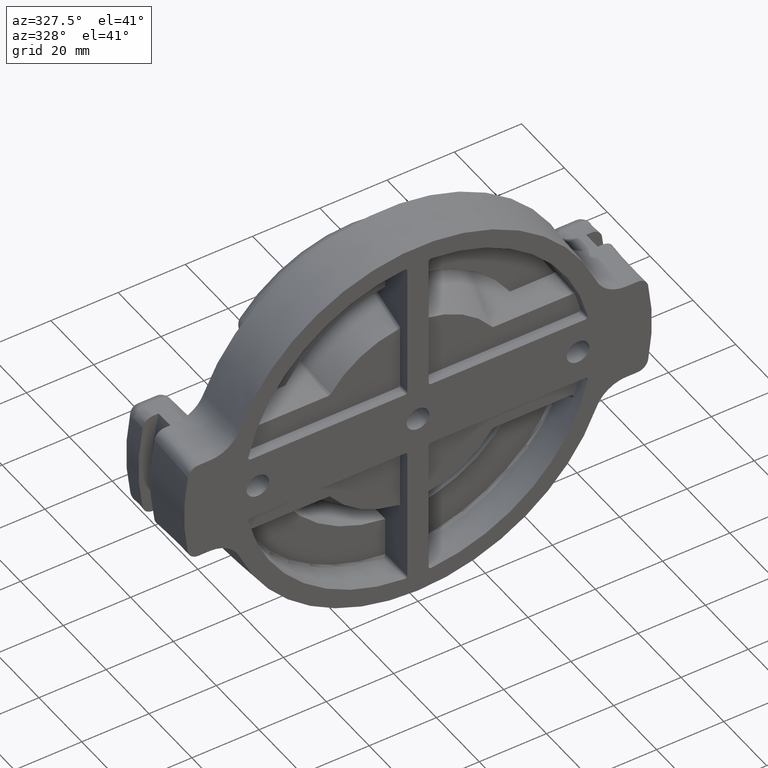
[diagram: clean part render]
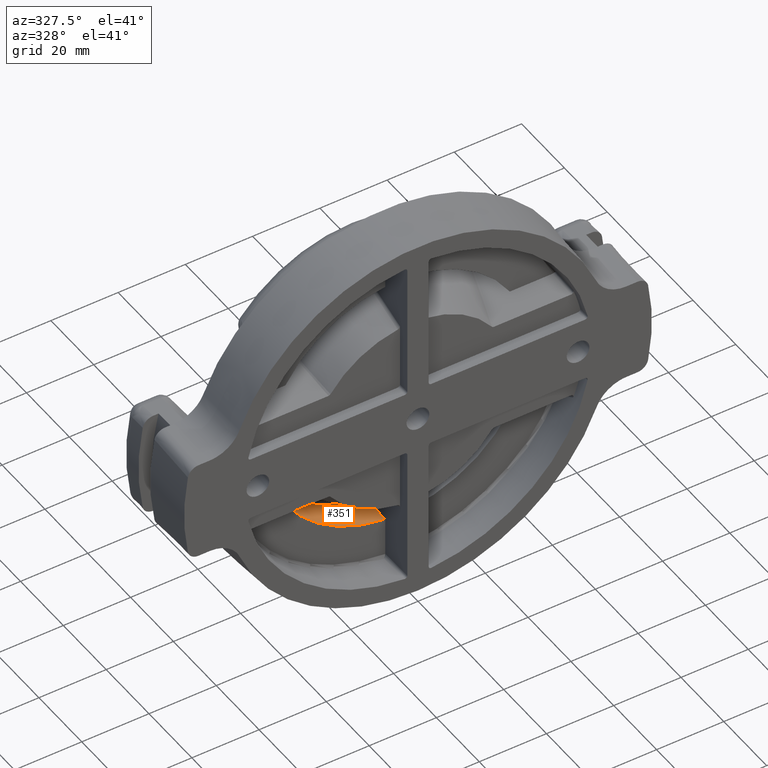
[diagram: same view with one face highlighted and labeled with its STEP entity id]
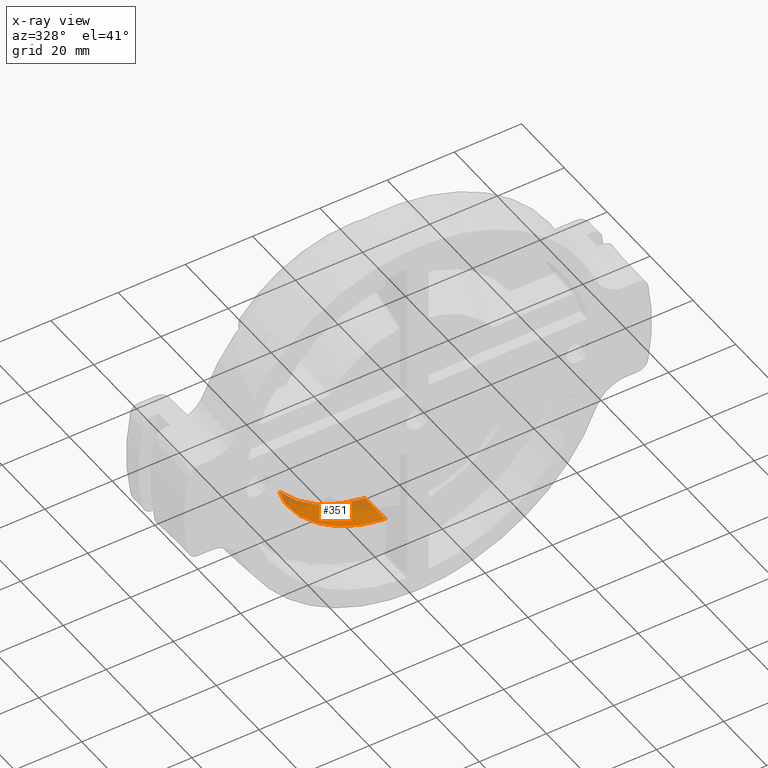
[diagram: x-ray of the same camera — body ghosted, the highlighted face saturated]
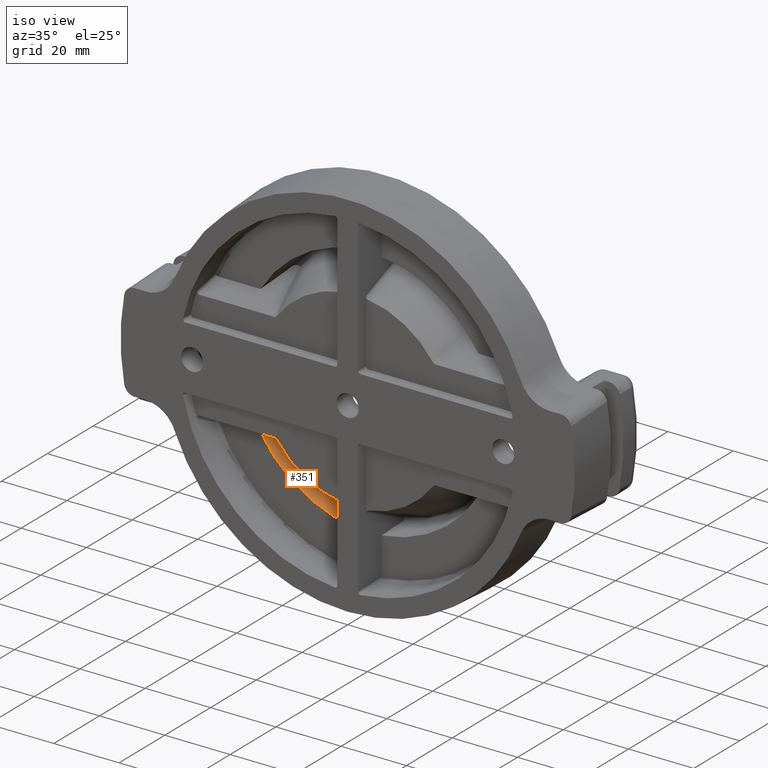
[diagram: same view with one face highlighted and labeled with its STEP entity id]
A machine part, auxiliary view. The second image highlights one B-rep face of the part: STEP entity #351.
The next image is the same camera in x-ray: the body ghosted, the highlighted face saturated — about 17% of this face is hidden behind the body in this view.
A second angle (iso view) of the same face is appended — the face is thin or edge-on in the first view.
In plain terms, the highlighted conical surface has half-angle 5 deg.
Its self-contained STEP definition (entity closure, byte-faithful):
#351 = ADVANCED_FACE ( 'NONE', ( #21490 ), #21495, .F. ) ;
#3211 = CIRCLE ( 'NONE', #21026, 1.525917206495644100 ) ;
#3220 = CIRCLE ( 'NONE', #21038, 1.496168842767896700 ) ;
#13644 = CARTESIAN_POINT ( 'NONE',  ( -0.1446529172311402700, 0.3750000000000000600, -1.519045376088545400 ) ) ;
#13645 = CARTESIAN_POINT ( 'NONE',  ( -1.313959156266081500, 0.3750000000000000600, -0.7758444797406228700 ) ) ;
#13653 = CARTESIAN_POINT ( 'NONE',  ( -0.1624728908990312200, 0.7150253533287434000, -1.487321002942066500 ) ) ;
#13654 = CARTESIAN_POINT ( 'NONE',  ( -1.168510228025825500, 0.7150253533297222800, -0.9344009059651320300 ) ) ;
#14293 = EDGE_CURVE ( 'NONE', #30834, #30835, #3211, .T. ) ;
#14301 = EDGE_CURVE ( 'NONE', #30844, #30835, #27581, .T. ) ;
#14305 = EDGE_CURVE ( 'NONE', #30843, #30844, #3220, .T. ) ;
#14306 = EDGE_CURVE ( 'NONE', #30834, #30843, #32780, .T. ) ;
#14641 = CARTESIAN_POINT ( 'NONE',  ( 0.0000000000000000000, 0.3750000000000000600, 0.0000000000000000000 ) ) ;
#14652 = DIRECTION ( 'NONE',  ( 0.0000000000000000000, 1.000000000000000000, 0.0000000000000000000 ) ) ;
#14653 = DIRECTION ( 'NONE',  ( 0.0000000000000000000, 0.0000000000000000000, 1.000000000000000000 ) ) ;
#14686 = CARTESIAN_POINT ( 'NONE',  ( -1.168510228025825500, 0.7150253533297222800, -0.9344009059651320300 ) ) ;
#14691 = CARTESIAN_POINT ( 'NONE',  ( -1.220216181018835700, 0.6083941902176052100, -0.8846779780079768700 ) ) ;
#14692 = CARTESIAN_POINT ( 'NONE',  ( -1.268762659978409400, 0.4949039509916664500, -0.8317566103310788400 ) ) ;
#14693 = CARTESIAN_POINT ( 'NONE',  ( -1.313959156266081500, 0.3750000000000000600, -0.7758444797406228700 ) ) ;
#14706 = CARTESIAN_POINT ( 'NONE',  ( 0.0000000000000000000, 0.7150253533297228300, 0.0000000000000000000 ) ) ;
#14710 = CARTESIAN_POINT ( 'NONE',  ( -0.1446529172311402700, 0.3750000000000000600, -1.519045376088545400 ) ) ;
#14711 = DIRECTION ( 'NONE',  ( 0.0000000000000000000, 1.000000000000000000, 0.0000000000000000000 ) ) ;
#14712 = DIRECTION ( 'NONE',  ( 0.0000000000000000000, 0.0000000000000000000, -1.000000000000000000 ) ) ;
#14713 = CARTESIAN_POINT ( 'NONE',  ( -0.1505931501763905500, 0.4883463967852660900, -1.508518325315868300 ) ) ;
#14714 = CARTESIAN_POINT ( 'NONE',  ( -0.1565331465346288800, 0.6016882792214195400, -1.497944548550865800 ) ) ;
#14715 = CARTESIAN_POINT ( 'NONE',  ( -0.1624728908990312200, 0.7150253533287434000, -1.487321002942066500 ) ) ;
#15308 = EDGE_LOOP ( 'NONE', ( #23676, #23675, #23674, #23673 ) ) ;
#20973 = AXIS2_PLACEMENT_3D ( 'NONE', #21076, #21078, #21071 ) ;
#21026 = AXIS2_PLACEMENT_3D ( 'NONE', #14641, #14652, #14653 ) ;
#21038 = AXIS2_PLACEMENT_3D ( 'NONE', #14706, #14711, #14712 ) ;
#21071 = DIRECTION ( 'NONE',  ( 0.0000000000000000000, 0.0000000000000000000, 1.000000000000000000 ) ) ;
#21076 = CARTESIAN_POINT ( 'NONE',  ( 0.0000000000000000000, 0.6032110643130854700, 0.0000000000000000000 ) ) ;
#21078 = DIRECTION ( 'NONE',  ( -0.0000000000000000000, -1.000000000000000000, -0.0000000000000000000 ) ) ;
#21490 = FACE_OUTER_BOUND ( 'NONE', #15308, .T. ) ;
#21495 = CONICAL_SURFACE ( 'NONE', #20973, 1.505951325477063600, 0.08726646259971666800 ) ;
#23673 = ORIENTED_EDGE ( 'NONE', *, *, #14293, .F. ) ;
#23674 = ORIENTED_EDGE ( 'NONE', *, *, #14301, .T. ) ;
#23675 = ORIENTED_EDGE ( 'NONE', *, *, #14305, .T. ) ;
#23676 = ORIENTED_EDGE ( 'NONE', *, *, #14306, .T. ) ;
#27581 =( BOUNDED_CURVE ( )  B_SPLINE_CURVE ( 3, ( #14686, #14691, #14692, #14693 ),
 .UNSPECIFIED., .F., .T. ) 
 B_SPLINE_CURVE_WITH_KNOTS ( ( 4, 4 ),
 ( 3.898493929026190900, 4.023802131855664000 ),
 .UNSPECIFIED. ) 
 CURVE ( )  GEOMETRIC_REPRESENTATION_ITEM ( )  RATIONAL_B_SPLINE_CURVE ( ( 1.000000000000000000, 0.9986919158536361500, 0.9986919158536361500, 1.000000000000000000 ) ) 
 REPRESENTATION_ITEM ( '' )  );
#30834 = VERTEX_POINT ( 'NONE', #13644 ) ;
#30835 = VERTEX_POINT ( 'NONE', #13645 ) ;
#30843 = VERTEX_POINT ( 'NONE', #13653 ) ;
#30844 = VERTEX_POINT ( 'NONE', #13654 ) ;
#32780 = B_SPLINE_CURVE_WITH_KNOTS ( 'NONE', 3,
 ( #14710, #14713, #14714, #14715 ),
 .UNSPECIFIED., .F., .F.,
 ( 4, 4 ),
 ( 0.06941205538470510100, 0.07809798862755774900 ),
 .UNSPECIFIED. ) ;